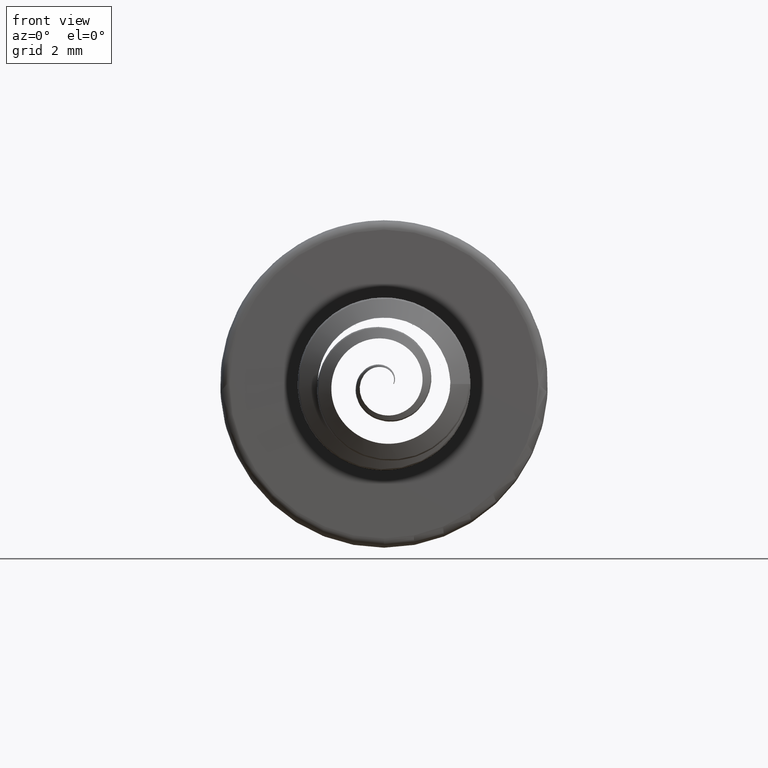
[diagram: clean part render]
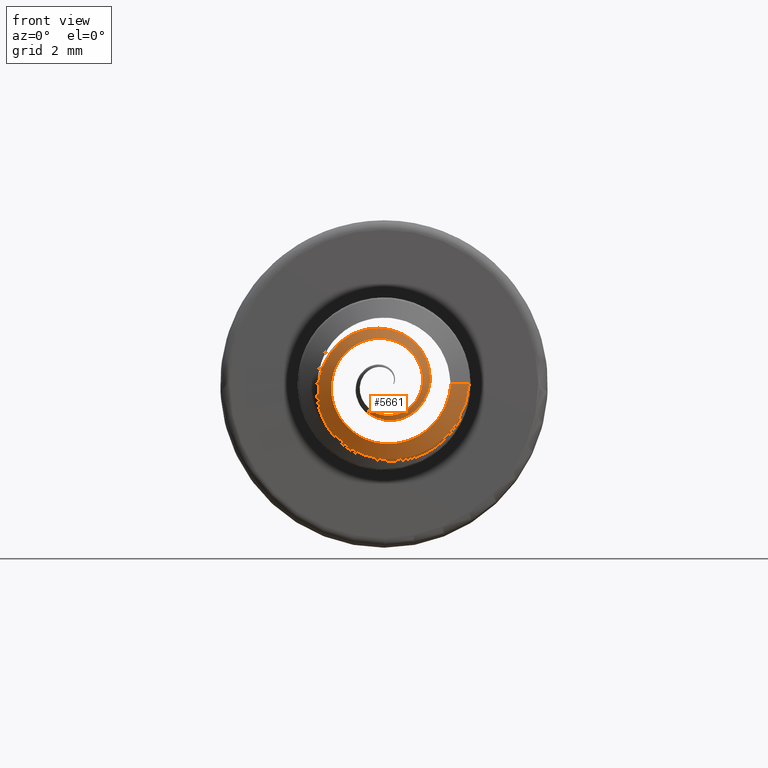
[diagram: same view with one face highlighted and labeled with its STEP entity id]
A machine part, front view. The second image highlights one B-rep face of the part: STEP entity #5661.
In plain terms, the highlighted face is a freeform B-spline surface patch.
Its self-contained STEP definition (entity closure, byte-faithful):
#6 = CARTESIAN_POINT ( 'NONE',  ( -0.4709872024379319622, -3.524822387837885262, -1.146087984880749922 ) ) ;
#94 = B_SPLINE_CURVE_WITH_KNOTS ( 'NONE', 3,
 ( #1841, #2804, #403, #1800, #5631, #2764, #5167, #2292, #6116, #3809, #5223, #6160, #890, #485, #6, #4716, #4203, #446, #464, #927, #3767, #4248, #1423, #4739, #5695, #4229, #3742, #2827, #4694, #1885, #1820, #6185, #2332, #5672, #4269, #1399, #2378, #3309, #3791, #5182, #5245, #5719 ),
 .UNSPECIFIED., .F., .F.,
 ( 4, 2, 2, 2, 2, 2, 2, 2, 2, 2, 2, 2, 2, 2, 2, 2, 2, 2, 2, 2, 4 ),
 ( 6.608215541859495075E-19, 0.0005456532963099672328, 0.0008184799444649505781, 0.001091306592619933598, 0.001636959888929900506, 0.002182613185239867196, 0.002455439833394850325, 0.002728266481549834321, 0.003273919777859801011, 0.003546746426014785007, 0.003819573074169768136, 0.004365226370479736127, 0.004910879666789703252, 0.005456532963099671243, 0.006002186259409638368, 0.006547839555719605492, 0.007093492852029574351, 0.007639146148339541476, 0.008184799444649507733, 0.008457626092804490861, 0.008730452740959475724 ),
 .UNSPECIFIED. ) ;
#115 = VERTEX_POINT ( 'NONE', #1737 ) ;
#124 = FACE_OUTER_BOUND ( 'NONE', #1387, .T. ) ;
#160 = CARTESIAN_POINT ( 'NONE',  ( 0.2452323364718278498, -4.035726558990597290, 1.207971280575494077 ) ) ;
#226 = CARTESIAN_POINT ( 'NONE',  ( -0.1614524739689917332, -4.785560473937713333, -0.7693102893551908572 ) ) ;
#238 = CARTESIAN_POINT ( 'NONE',  ( 0.8766426635281913127, -4.202393225657702125, 0.7351732191658303384 ) ) ;
#260 = CARTESIAN_POINT ( 'NONE',  ( -0.2261589248364755389, -3.952393225657369058, 1.273109940585289035 ) ) ;
#284 = CARTESIAN_POINT ( 'NONE',  ( 0.5343750198220255099, -4.683333333333214554, -0.2028944969450635905 ) ) ;
#311 = B_SPLINE_CURVE_WITH_KNOTS ( 'NONE', 1,
 ( #4219, #5355 ),
 .UNSPECIFIED., .F., .F.,
 ( 2, 2 ),
 ( 0.000000000000000000, 1.000000000000000000 ),
 .UNSPECIFIED. ) ;
#324 = CARTESIAN_POINT ( 'NONE',  ( 0.3095636470396072037, -3.202393225657473863, -1.712095485350091595 ) ) ;
#403 = CARTESIAN_POINT ( 'NONE',  ( 1.366304934020103223, -3.154284050771922310, -0.3581380747880659743 ) ) ;
#446 = CARTESIAN_POINT ( 'NONE',  ( -0.9858939211441484218, -3.652274271241002346, -0.6529397404988261933 ) ) ;
#464 = CARTESIAN_POINT ( 'NONE',  ( -1.026182024527588998, -3.668415143504450082, -0.5729420219170398010 ) ) ;
#485 = CARTESIAN_POINT ( 'NONE',  ( -0.3897380463019381458, -3.508493088778118718, -1.183823256136505186 ) ) ;
#625 = EDGE_CURVE ( 'NONE', #2880, #2162, #94, .T. ) ;
#649 = CARTESIAN_POINT ( 'NONE',  ( 1.028124980177995473, -4.285726558990931245, 0.3425208174233680958 ) ) ;
#673 = CARTESIAN_POINT ( 'NONE',  ( -1.449999989442328774, -3.535726558990823776, -0.4897829845694904316 ) ) ;
#679 = CARTESIAN_POINT ( 'NONE',  ( 1.425000000000000044, -3.100000000000000533, 0.000000000000000000 ) ) ;
#735 = EDGE_CURVE ( 'NONE', #5445, #115, #5254, .T. ) ;
#777 = CARTESIAN_POINT ( 'NONE',  ( 0.06367414623259583240, -4.933333333333339787, -0.4179010810754099636 ) ) ;
#793 = CARTESIAN_POINT ( 'NONE',  ( 0.3769508537673975090, -4.766666666666658614, -0.3452838060096300454 ) ) ;
#811 = CARTESIAN_POINT ( 'NONE',  ( -1.356250010557672692, -3.702393225657477860, 0.4897829845695070849 ) ) ;
#890 = CARTESIAN_POINT ( 'NONE',  ( -0.2191631237531100618, -3.476194615235304486, -1.241477441225065981 ) ) ;
#927 = CARTESIAN_POINT ( 'NONE',  ( -1.087686382346657821, -3.702107992762058153, -0.4041165819487628763 ) ) ;
#1108 = CARTESIAN_POINT ( 'NONE',  ( -1.036341075163508041, -3.785726558990931689, 0.9136042039704291851 ) ) ;
#1200 = CARTESIAN_POINT ( 'NONE',  ( 1.825000000000000622, -2.869059892324151040, 0.000000000000000000 ) ) ;
#1387 = EDGE_LOOP ( 'NONE', ( #3395, #3681, #5895, #2593 ) ) ;
#1399 = CARTESIAN_POINT ( 'NONE',  ( 0.5229449044514725697, -4.637676227617712144, -0.5521655296515401989 ) ) ;
#1423 = CARTESIAN_POINT ( 'NONE',  ( -1.116378838057577205, -3.806976280956234415, 0.1353465250319860758 ) ) ;
#1552 = CARTESIAN_POINT ( 'NONE',  ( 1.777580188601849631, -2.953361755882299100, -0.6444492065217172216 ) ) ;
#1686 = CARTESIAN_POINT ( 'NONE',  ( 1.053891401826158258, -3.266666666666677710, -0.9287305984727486363 ) ) ;
#1737 = CARTESIAN_POINT ( 'NONE',  ( -0.3500000000000081934, -4.869059892324148819, -0.6062177826491028654 ) ) ;
#1800 = CARTESIAN_POINT ( 'NONE',  ( 1.247330462459347977, -3.195706289884239659, -0.6027665988094422778 ) ) ;
#1820 = CARTESIAN_POINT ( 'NONE',  ( 0.5757712698432653209, -4.267138434429559091, 0.7209516138201722546 ) ) ;
#1841 = CARTESIAN_POINT ( 'NONE',  ( 1.425000000000000044, -3.100000000000000533, 0.000000000000000000 ) ) ;
#1885 = CARTESIAN_POINT ( 'NONE',  ( 0.4310339850756461644, -4.225543417481399722, 0.8360452162266807097 ) ) ;
#2152 = CARTESIAN_POINT ( 'NONE',  ( -0.1614524739689917332, -4.785560473937713333, -0.7693102893551908572 ) ) ;
#2162 = VERTEX_POINT ( 'NONE', #2719 ) ;
#2172 = CARTESIAN_POINT ( 'NONE',  ( -0.1470788714665896280, -4.183333333333218107, 0.8568866153342112879 ) ) ;
#2232 = CARTESIAN_POINT ( 'NONE',  ( 1.374811352960387589, -3.035726558990828217, -1.205327593648740869 ) ) ;
#2292 = CARTESIAN_POINT ( 'NONE',  ( 0.8250195402810823753, -3.297383265328952984, -1.067465739769501987 ) ) ;
#2332 = CARTESIAN_POINT ( 'NONE',  ( 0.8293406314745586094, -4.398080134734225766, 0.2456121952351702498 ) ) ;
#2378 = CARTESIAN_POINT ( 'NONE',  ( 0.3576186119607728253, -4.691800148590794528, -0.6441486213901943536 ) ) ;
#2531 = CARTESIAN_POINT ( 'NONE',  ( 1.374811352960387589, -3.035726558990828217, -1.205327593648740869 ) ) ;
#2593 = ORIENTED_EDGE ( 'NONE', *, *, #735, .F. ) ;
#2625 = CARTESIAN_POINT ( 'NONE',  ( 0.2304835981738375117, -3.433333333333323356, -1.295872157498531019 ) ) ;
#2647 = CARTESIAN_POINT ( 'NONE',  ( -1.049999989442271797, -3.766666666666672825, -0.3501566548926647315 ) ) ;
#2719 = CARTESIAN_POINT ( 'NONE',  ( -0.3077435775542279317, -4.917853406072270062, -0.5330275120269207800 ) ) ;
#2764 = CARTESIAN_POINT ( 'NONE',  ( 1.091262134247567239, -3.237996876161319371, -0.8224724502092825018 ) ) ;
#2804 = CARTESIAN_POINT ( 'NONE',  ( 1.412658032747697856, -3.127715294882365438, -0.1820095654198537471 ) ) ;
#2827 = CARTESIAN_POINT ( 'NONE',  ( -0.08448875254266087487, -4.102045213748739982, 0.9912412949713799160 ) ) ;
#2880 = VERTEX_POINT ( 'NONE', #679 ) ;
#3012 = CARTESIAN_POINT ( 'NONE',  ( -0.2261589248364755389, -3.952393225657369058, 1.273109940585289035 ) ) ;
#3028 = CARTESIAN_POINT ( 'NONE',  ( 0.6978707893731503908, -4.535726558990809565, -0.6218808101510133746 ) ) ;
#3073 = CARTESIAN_POINT ( 'NONE',  ( -0.3500000000000081934, -4.869059892324148819, -0.6062177826491028654 ) ) ;
#3112 = CARTESIAN_POINT ( 'NONE',  ( -0.9562500105577284026, -3.933333333333326909, 0.3501566548926757783 ) ) ;
#3129 = CARTESIAN_POINT ( 'NONE',  ( 0.6281249801779743569, -4.516666666666779406, 0.2028944969450532376 ) ) ;
#3309 = CARTESIAN_POINT ( 'NONE',  ( 0.09789510289668411358, -4.772168959269647459, -0.6788193737618695156 ) ) ;
#3395 = ORIENTED_EDGE ( 'NONE', *, *, #5457, .F. ) ;
#3490 = CARTESIAN_POINT ( 'NONE',  ( 0.8766426635281913127, -4.202393225657702125, 0.7351732191658303384 ) ) ;
#3585 = CARTESIAN_POINT ( 'NONE',  ( 0.6978707893731503908, -4.535726558990809565, -0.6218808101510133746 ) ) ;
#3603 = CARTESIAN_POINT ( 'NONE',  ( -0.8941929864502579095, -3.683333333333189241, -0.7502996018324240568 ) ) ;
#3625 = CARTESIAN_POINT ( 'NONE',  ( 0.5557227194501633827, -4.433333333333552062, 0.4585762199158776586 ) ) ;
#3648 = CARTESIAN_POINT ( 'NONE',  ( 1.425000000000000044, -3.100000000000000533, 0.000000000000000000 ) ) ;
#3681 = ORIENTED_EDGE ( 'NONE', *, *, #625, .T. ) ;
#3742 = CARTESIAN_POINT ( 'NONE',  ( -0.4369432966803445950, -4.026372918489004249, 0.9305262143121363350 ) ) ;
#3767 = CARTESIAN_POINT ( 'NONE',  ( -1.108586859510966471, -3.719727824253523885, -0.3150146396023497108 ) ) ;
#3791 = CARTESIAN_POINT ( 'NONE',  ( 0.007852962105775006599, -4.799851068597371651, -0.6734900874433482620 ) ) ;
#3809 = CARTESIAN_POINT ( 'NONE',  ( 0.3225790154640533203, -3.385544696259909170, -1.269829275791998002 ) ) ;
#3825 = VECTOR ( 'NONE', #5781, 1000.000000000000114 ) ;
#3964 = CARTESIAN_POINT ( 'NONE',  ( 0.9343750198220055481, -4.452393225657365505, -0.3425208174233895786 ) ) ;
#3986 = CARTESIAN_POINT ( 'NONE',  ( 0.1427542106268323563, -4.702393225657490738, -0.8341243999615852722 ) ) ;
#4045 = CARTESIAN_POINT ( 'NONE',  ( -0.3286370635538389262, -3.285726558990968105, -1.646956836518761902 ) ) ;
#4067 = CARTESIAN_POINT ( 'NONE',  ( -0.3500000000000081934, -4.869059892324148819, -0.6062177826491028654 ) ) ;
#4203 = CARTESIAN_POINT ( 'NONE',  ( -0.8367802959145075326, -3.604134254285753958, -0.8794847879632116117 ) ) ;
#4219 = CARTESIAN_POINT ( 'NONE',  ( 1.425000000000000044, -3.100000000000000533, 0.000000000000000000 ) ) ;
#4229 = CARTESIAN_POINT ( 'NONE',  ( -0.6046247897082520639, -3.988069012758376441, 0.8521512427922139921 ) ) ;
#4248 = CARTESIAN_POINT ( 'NONE',  ( -1.138535850198791444, -3.772442684796282641, -0.04842740583374331720 ) ) ;
#4269 = CARTESIAN_POINT ( 'NONE',  ( 0.7512772272062754331, -4.538524987490023754, -0.2850604156800826128 ) ) ;
#4410 = CARTESIAN_POINT ( 'NONE',  ( 1.825000000000000622, -2.869059892324151040, 0.000000000000000000 ) ) ;
#4530 = CARTESIAN_POINT ( 'NONE',  ( 0.9343750198220055481, -4.452393225657365505, -0.3425208174233895786 ) ) ;
#4547 = CARTESIAN_POINT ( 'NONE',  ( -1.036341075163508041, -3.785726558990931689, 0.9136042039704291851 ) ) ;
#4572 = CARTESIAN_POINT ( 'NONE',  ( -0.1500000000000014655, -5.099999999999998757, -0.2598076211353305687 ) ) ;
#4592 = CARTESIAN_POINT ( 'NONE',  ( -1.215112936446172354, -3.452393225657339748, -1.026896597665686972 ) ) ;
#4615 = CARTESIAN_POINT ( 'NONE',  ( 1.777580188601849631, -2.953361755882299100, -0.6444492065217172216 ) ) ;
#4694 = CARTESIAN_POINT ( 'NONE',  ( 0.1017030364244027180, -4.141595978141157097, 0.9720509373837947775 ) ) ;
#4716 = CARTESIAN_POINT ( 'NONE',  ( -0.7028154349311522830, -3.573546975878567178, -1.006238598769990666 ) ) ;
#4739 = CARTESIAN_POINT ( 'NONE',  ( -0.9875200804230217511, -3.875989668149400824, 0.4713088521556255683 ) ) ;
#4747 = CARTESIAN_POINT ( 'NONE',  ( -0.3500000000000081934, -4.869059892324148819, -0.6062177826491028654 ) ) ;
#4905 = CARTESIAN_POINT ( 'NONE',  ( 0.3095636470396072037, -3.202393225657473863, -1.712095485350091595 ) ) ;
#4926 = EDGE_CURVE ( 'NONE', #115, #2162, #5399, .T. ) ;
#4941 = CARTESIAN_POINT ( 'NONE',  ( -1.356250010557672692, -3.702393225657477860, 0.4897829845695070849 ) ) ;
#5024 = CARTESIAN_POINT ( 'NONE',  ( -1.449999989442328774, -3.535726558990823776, -0.4897829845694904316 ) ) ;
#5043 = CARTESIAN_POINT ( 'NONE',  ( -0.7154211285333997861, -4.016666666666781182, 0.6370072061939515695 ) ) ;
#5167 = CARTESIAN_POINT ( 'NONE',  ( 1.028570912787555525, -3.252813967711941867, -0.8896231771575699998 ) ) ;
#5182 = CARTESIAN_POINT ( 'NONE',  ( -0.1598506686705481461, -4.856926869600823871, -0.6283199944335837728 ) ) ;
#5223 = CARTESIAN_POINT ( 'NONE',  ( 0.1379445012211509003, -3.414430488493376714, -1.290021146361683746 ) ) ;
#5245 = CARTESIAN_POINT ( 'NONE',  ( -0.2394941257668474766, -4.887310277893641697, -0.5881367068059414338 ) ) ;
#5254 = B_SPLINE_CURVE_WITH_KNOTS ( 'NONE', 3,
 ( #4410, #1552, #2531, #4905, #5878, #5379, #673, #4941, #1108, #3012, #160, #3490, #649, #3964, #3028, #3986, #226, #3073 ),
 .UNSPECIFIED., .F., .F.,
 ( 4, 2, 2, 2, 2, 2, 2, 2, 4 ),
 ( 0.000000000000000000, 0.1250000000000000000, 0.2500000000000000000, 0.3750000000000000000, 0.5000000000000000000, 0.6250000000000000000, 0.7500000000000000000, 0.8750000000000000000, 1.000000000000000000 ),
 .UNSPECIFIED. ) ;
#5355 = CARTESIAN_POINT ( 'NONE',  ( 1.825000000000000622, -2.869059892324151040, 0.000000000000000000 ) ) ;
#5379 = CARTESIAN_POINT ( 'NONE',  ( -1.215112936446172354, -3.452393225657339748, -1.026896597665686972 ) ) ;
#5399 = LINE ( 'NONE', #4747, #3825 ) ;
#5445 = VERTEX_POINT ( 'NONE', #6128 ) ;
#5457 = EDGE_CURVE ( 'NONE', #2880, #5445, #311, .T. ) ;
#5491 = CARTESIAN_POINT ( 'NONE',  ( 1.377542810691361197, -3.184368313167823761, -0.5035967048519612854 ) ) ;
#5513 = CARTESIAN_POINT ( 'NONE',  ( 0.1661522805498469590, -4.266666666666447227, 0.7917479567978995547 ) ) ;
#5531 = CARTESIAN_POINT ( 'NONE',  ( -0.08279637052989058388, -5.016727195665442451, -0.3526950062098440641 ) ) ;
#5631 = CARTESIAN_POINT ( 'NONE',  ( 1.200227591851904529, -3.209529644843287954, -0.6793373990271390772 ) ) ;
#5661 = ADVANCED_FACE ( 'NONE', ( #124 ), #6168, .T. ) ;
#5672 = CARTESIAN_POINT ( 'NONE',  ( 0.8169463994871797308, -4.492046517472980227, -0.1077062689024469583 ) ) ;
#5695 = CARTESIAN_POINT ( 'NONE',  ( -0.8800788683459079831, -3.911834133683914860, 0.6230957799127959662 ) ) ;
#5719 = CARTESIAN_POINT ( 'NONE',  ( -0.3077435775542279317, -4.917853406072270062, -0.5330275120269207800 ) ) ;
#5781 = DIRECTION ( 'NONE',  ( 0.4330127018922338977, -0.4999999999999978351, 0.7499999999999930056 ) ) ;
#5878 = CARTESIAN_POINT ( 'NONE',  ( -0.3286370635538389262, -3.285726558990968105, -1.646956836518761902 ) ) ;
#5895 = ORIENTED_EDGE ( 'NONE', *, *, #4926, .F. ) ;
#5970 = CARTESIAN_POINT ( 'NONE',  ( -0.2495570135497496567, -3.516666666666817598, -1.230733509324474895 ) ) ;
#5993 = CARTESIAN_POINT ( 'NONE',  ( 0.1427542106268323563, -4.702393225657490738, -0.8341243999615852722 ) ) ;
#6014 = CARTESIAN_POINT ( 'NONE',  ( 0.2452323364718278498, -4.035726558990597290, 1.207971280575494077 ) ) ;
#6039 = CARTESIAN_POINT ( 'NONE',  ( 1.028124980177995473, -4.285726558990931245, 0.3425208174233680958 ) ) ;
#6116 = CARTESIAN_POINT ( 'NONE',  ( 0.6643637404740189156, -3.327772256190861810, -1.158699696317536887 ) ) ;
#6128 = CARTESIAN_POINT ( 'NONE',  ( 1.825000000000000622, -2.869059892324151040, 0.000000000000000000 ) ) ;
#6160 = CARTESIAN_POINT ( 'NONE',  ( -0.1296379609204161010, -3.460205861123534454, -1.261110187690989815 ) ) ;
#6168 = B_SPLINE_SURFACE_WITH_KNOTS ( 'NONE', 1, 3, ( 
 ( #1200, #4615, #2232, #324, #4045, #4592, #5024, #811, #4547, #260, #6014, #238, #6039, #4530, #3585, #5993, #2152, #4067 ),
 ( #3648, #5491, #1686, #2625, #5970, #3603, #2647, #3112, #5043, #2172, #5513, #3625, #3129, #284, #793, #777, #5531, #4572 ) ),
 .UNSPECIFIED., .F., .F., .F.,
 ( 2, 2 ),
 ( 4, 2, 2, 2, 2, 2, 2, 2, 4 ),
 ( 0.000000000000000000, 1.000000000000000000 ),
 ( 0.000000000000000000, 0.1250000000000000000, 0.2500000000000000000, 0.3750000000000000000, 0.5000000000000000000, 0.6250000000000000000, 0.7500000000000000000, 0.8750000000000000000, 1.000000000000000000 ),
 .UNSPECIFIED. ) ;
#6185 = CARTESIAN_POINT ( 'NONE',  ( 0.7771002004866287560, -4.352629064125791203, 0.4241720326502404492 ) ) ;